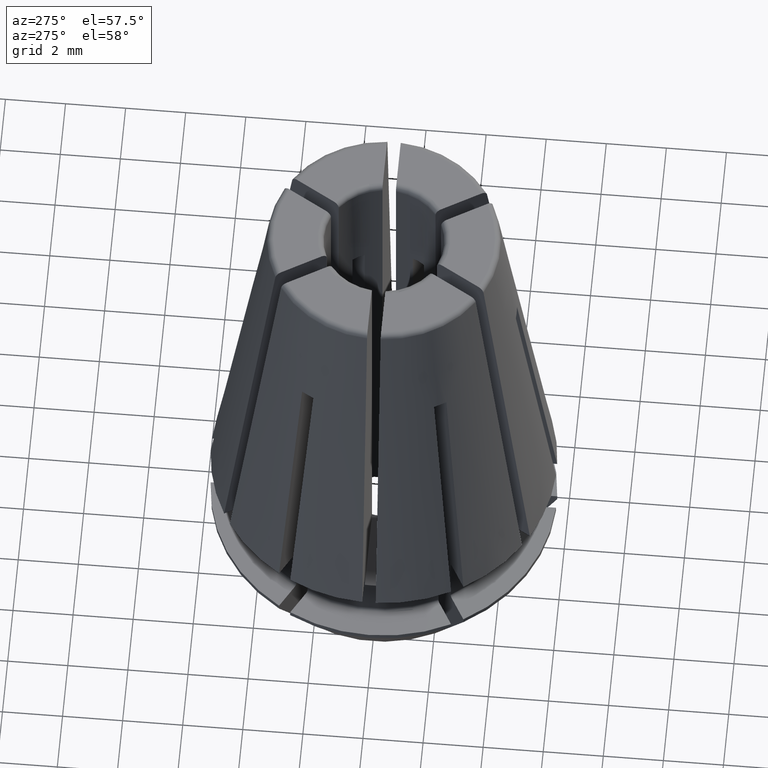
[diagram: clean part render]
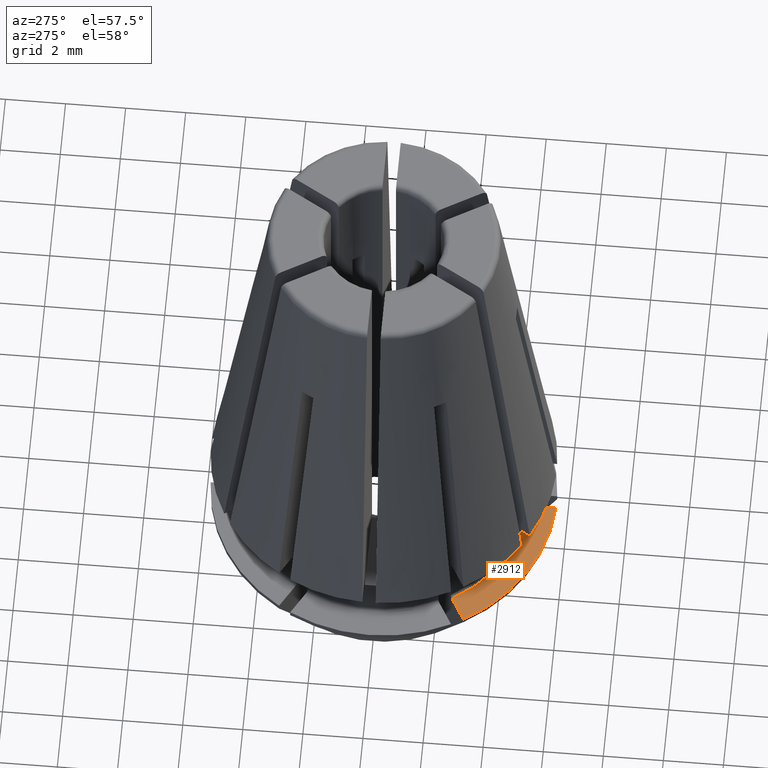
[diagram: same view with one face highlighted and labeled with its STEP entity id]
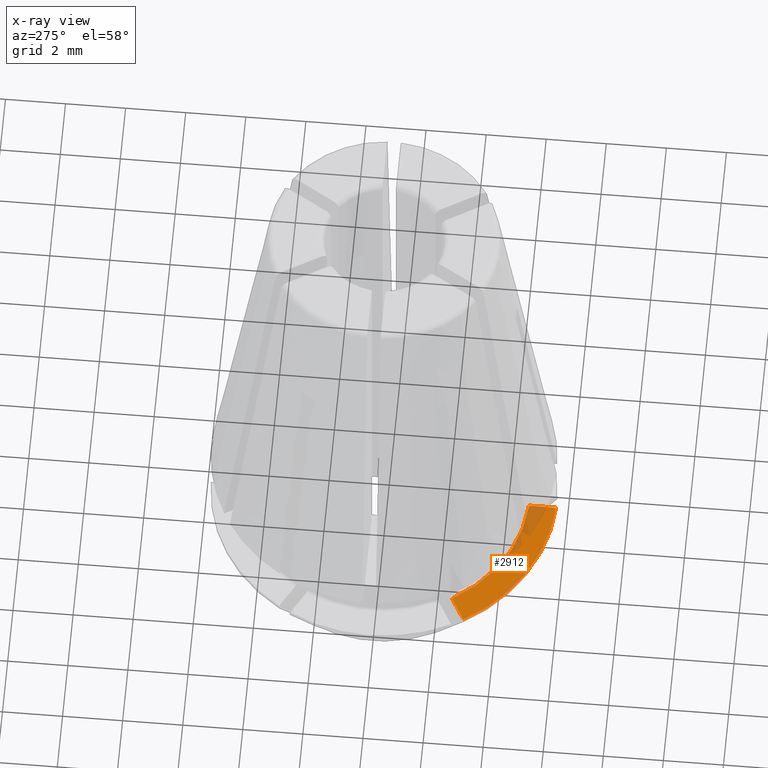
[diagram: x-ray of the same camera — body ghosted, the highlighted face saturated]
A machine part, auxiliary view. The second image highlights one B-rep face of the part: STEP entity #2912.
The next image is the same camera in x-ray: the body ghosted, the highlighted face saturated — about 14% of this face is hidden behind the body in this view.
In plain terms, the highlighted planar face has unit normal (0, 0, -1).
Its self-contained STEP definition (entity closure, byte-faithful):
#197=LINE('',#5253,#365);
#212=LINE('',#5376,#380);
#365=VECTOR('',#3858,1000.);
#380=VECTOR('',#3953,1000.);
#455=PLANE('',#3224);
#487=CIRCLE('',#2981,4.85);
#613=CIRCLE('',#3225,5.75);
#1247=ORIENTED_EDGE('',*,*,#1901,.F.);
#1248=ORIENTED_EDGE('',*,*,#1575,.F.);
#1249=ORIENTED_EDGE('',*,*,#1947,.T.);
#1250=ORIENTED_EDGE('',*,*,#1948,.T.);
#1575=EDGE_CURVE('',#2028,#2026,#487,.T.);
#1901=EDGE_CURVE('',#2026,#2253,#197,.T.);
#1947=EDGE_CURVE('',#2028,#2281,#212,.T.);
#1948=EDGE_CURVE('',#2281,#2253,#613,.T.);
#2026=VERTEX_POINT('',#4179);
#2028=VERTEX_POINT('',#4186);
#2253=VERTEX_POINT('',#5254);
#2281=VERTEX_POINT('',#5377);
#2554=EDGE_LOOP('',(#1247,#1248,#1249,#1250));
#2712=FACE_BOUND('',#2554,.T.);
#2912=ADVANCED_FACE('',(#2712),#455,.F.);
#2981=AXIS2_PLACEMENT_3D('',#4187,#3328,#3329);
#3224=AXIS2_PLACEMENT_3D('',#5375,#3951,#3952);
#3225=AXIS2_PLACEMENT_3D('',#5378,#3954,#3955);
#3328=DIRECTION('',(0.,0.,1.));
#3329=DIRECTION('',(1.,0.,0.));
#3858=DIRECTION('',(1.22464679914735E-16,-1.,0.));
#3951=DIRECTION('',(0.,0.,-1.));
#3952=DIRECTION('',(-1.,0.,0.));
#3953=DIRECTION('',(-0.866025403784438,-0.5,0.));
#3954=DIRECTION('',(0.,0.,1.));
#3955=DIRECTION('',(1.,0.,0.));
#4179=CARTESIAN_POINT('',(-0.224999999999992,-4.84477811669425,-2.00000000000025));
#4186=CARTESIAN_POINT('',(-4.0832009247562,-2.61724477419865,-2.00000000000025));
#4187=CARTESIAN_POINT('',(0.,0.,-2.));
#5253=CARTESIAN_POINT('',(-0.224999999999992,-7.02565199282226E-16,-2.));
#5254=CARTESIAN_POINT('',(-0.224999999999992,-5.7455961396534,-2.));
#5375=CARTESIAN_POINT('',(5.51188021535173,0.,-2.));
#5376=CARTESIAN_POINT('',(4.2464101615138,2.19185842870422,-2.));
#5377=CARTESIAN_POINT('',(-4.86333221682564,-3.0676537856782,-2.));
#5378=CARTESIAN_POINT('',(0.,0.,-2.));